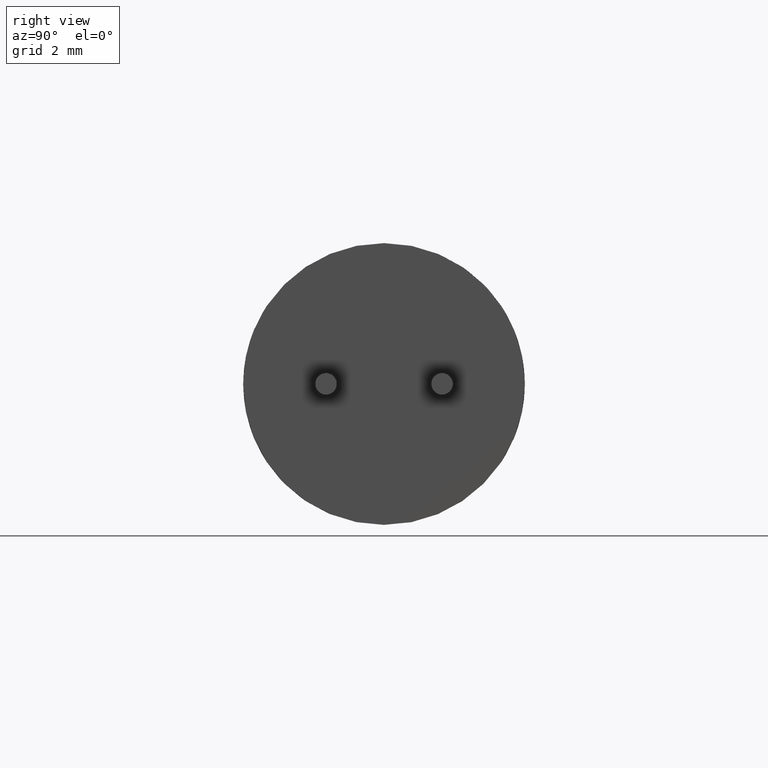
[diagram: clean part render]
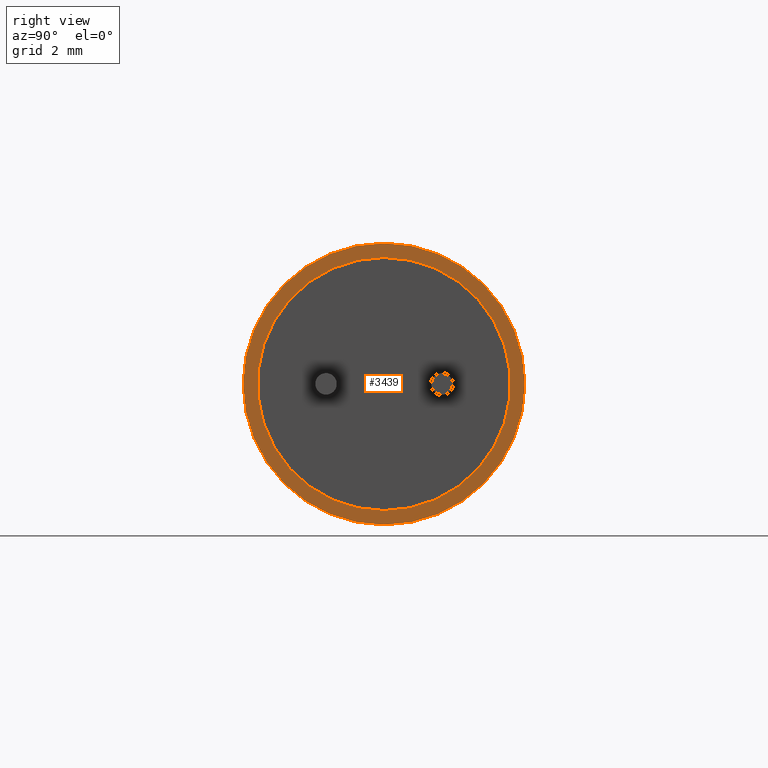
[diagram: same view with one face highlighted and labeled with its STEP entity id]
A machine part, right view. The second image highlights one B-rep face of the part: STEP entity #3439.
In plain terms, the highlighted planar face has unit normal (1, 0, 0).
Its self-contained STEP definition (entity closure, byte-faithful):
#77 = ORIENTED_EDGE ( 'NONE', *, *, #2271, .F. ) ;
#121 = VERTEX_POINT ( 'NONE', #2498 ) ;
#155 = DIRECTION ( 'NONE',  ( 0.0000000000000000000, 0.0000000000000000000, -1.000000000000000000 ) ) ;
#240 = AXIS2_PLACEMENT_3D ( 'NONE', #544, #833, #2739 ) ;
#255 = DIRECTION ( 'NONE',  ( 0.0000000000000000000, 0.0000000000000000000, -1.000000000000000000 ) ) ;
#256 = DIRECTION ( 'NONE',  ( 1.000000000000000000, 0.0000000000000000000, 0.0000000000000000000 ) ) ;
#377 = CIRCLE ( 'NONE', #240, 4.250000000000000000 ) ;
#425 = ORIENTED_EDGE ( 'NONE', *, *, #662, .T. ) ;
#471 = ORIENTED_EDGE ( 'NONE', *, *, #796, .F. ) ;
#544 = CARTESIAN_POINT ( 'NONE',  ( 12.85000000000000000, 0.0000000000000000000, 0.0000000000000000000 ) ) ;
#662 = EDGE_CURVE ( 'NONE', #121, #3456, #377, .T. ) ;
#704 = EDGE_CURVE ( 'NONE', #3456, #121, #2143, .T. ) ;
#796 = EDGE_CURVE ( 'NONE', #1520, #3537, #2438, .T. ) ;
#833 = DIRECTION ( 'NONE',  ( 1.000000000000000000, 0.0000000000000000000, 0.0000000000000000000 ) ) ;
#975 = DIRECTION ( 'NONE',  ( 1.000000000000000000, 0.0000000000000000000, 0.0000000000000000000 ) ) ;
#982 = AXIS2_PLACEMENT_3D ( 'NONE', #3274, #1356, #1385 ) ;
#1002 = CARTESIAN_POINT ( 'NONE',  ( 12.85000000000000000, 4.674384983835510700E-016, -3.816924999999999900 ) ) ;
#1153 = FACE_OUTER_BOUND ( 'NONE', #2416, .T. ) ;
#1228 = ORIENTED_EDGE ( 'NONE', *, *, #704, .T. ) ;
#1356 = DIRECTION ( 'NONE',  ( 1.000000000000000000, 0.0000000000000000000, 0.0000000000000000000 ) ) ;
#1376 = CARTESIAN_POINT ( 'NONE',  ( 12.85000000000000000, 0.0000000000000000000, 0.0000000000000000000 ) ) ;
#1385 = DIRECTION ( 'NONE',  ( 0.0000000000000000000, 0.0000000000000000000, -1.000000000000000000 ) ) ;
#1388 = DIRECTION ( 'NONE',  ( 0.0000000000000000000, 0.0000000000000000000, -1.000000000000000000 ) ) ;
#1520 = VERTEX_POINT ( 'NONE', #1002 ) ;
#1658 = DIRECTION ( 'NONE',  ( 1.000000000000000000, 0.0000000000000000000, 0.0000000000000000000 ) ) ;
#1661 = EDGE_LOOP ( 'NONE', ( #77, #471 ) ) ;
#1676 = AXIS2_PLACEMENT_3D ( 'NONE', #1376, #256, #1388 ) ;
#1791 = AXIS2_PLACEMENT_3D ( 'NONE', #3276, #1658, #255 ) ;
#1925 = PLANE ( 'NONE',  #1676 ) ;
#2143 = CIRCLE ( 'NONE', #3037, 4.250000000000000000 ) ;
#2177 = CARTESIAN_POINT ( 'NONE',  ( 12.85000000000000000, 0.0000000000000000000, 3.816924999999999900 ) ) ;
#2271 = EDGE_CURVE ( 'NONE', #3537, #1520, #2303, .T. ) ;
#2303 = CIRCLE ( 'NONE', #1791, 3.816924999999999900 ) ;
#2416 = EDGE_LOOP ( 'NONE', ( #425, #1228 ) ) ;
#2438 = CIRCLE ( 'NONE', #982, 3.816924999999999900 ) ;
#2498 = CARTESIAN_POINT ( 'NONE',  ( 12.85000000000000000, 0.0000000000000000000, 4.250000000000000000 ) ) ;
#2605 = CARTESIAN_POINT ( 'NONE',  ( 12.85000000000000000, 0.0000000000000000000, 0.0000000000000000000 ) ) ;
#2684 = CARTESIAN_POINT ( 'NONE',  ( 12.85000000000000000, 5.204748896376249700E-016, -4.250000000000000000 ) ) ;
#2739 = DIRECTION ( 'NONE',  ( 0.0000000000000000000, 0.0000000000000000000, -1.000000000000000000 ) ) ;
#2855 = FACE_BOUND ( 'NONE', #1661, .T. ) ;
#3037 = AXIS2_PLACEMENT_3D ( 'NONE', #2605, #975, #155 ) ;
#3274 = CARTESIAN_POINT ( 'NONE',  ( 12.85000000000000000, 0.0000000000000000000, 0.0000000000000000000 ) ) ;
#3276 = CARTESIAN_POINT ( 'NONE',  ( 12.85000000000000000, 0.0000000000000000000, 0.0000000000000000000 ) ) ;
#3439 = ADVANCED_FACE ( 'NONE', ( #1153, #2855 ), #1925, .T. ) ;
#3456 = VERTEX_POINT ( 'NONE', #2684 ) ;
#3537 = VERTEX_POINT ( 'NONE', #2177 ) ;